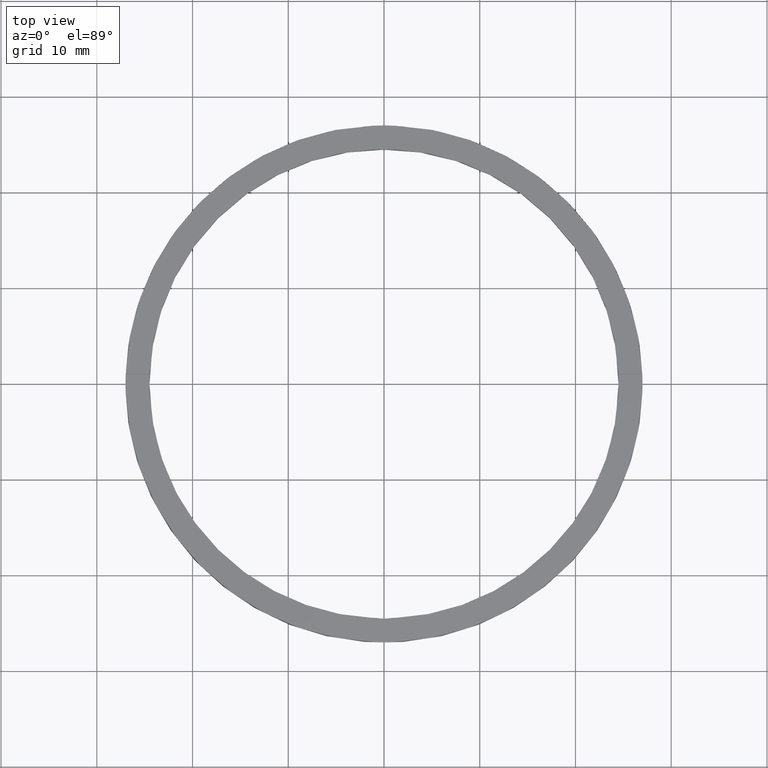
[diagram: clean part render]
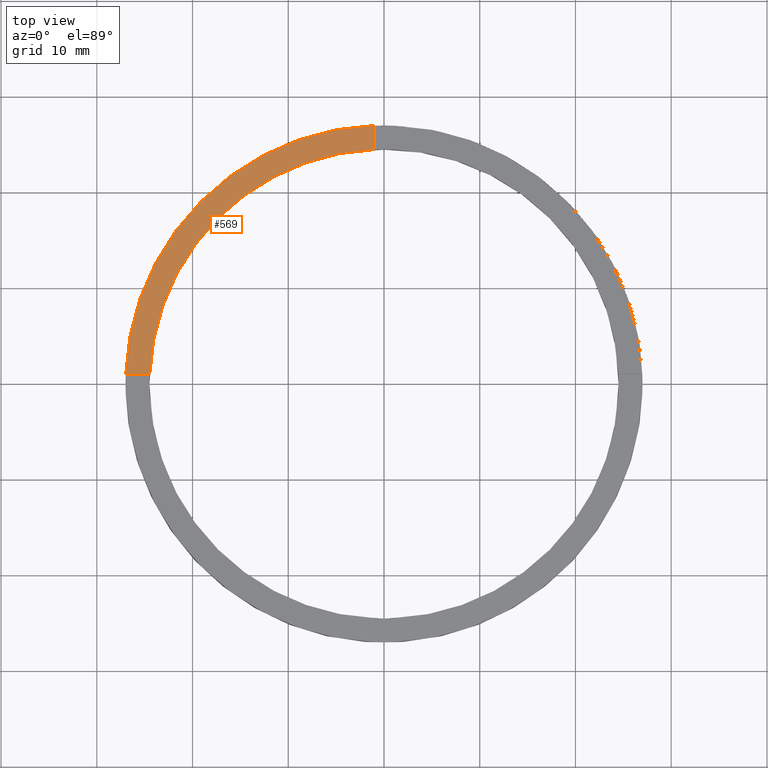
[diagram: same view with one face highlighted and labeled with its STEP entity id]
A machine part, top view. The second image highlights one B-rep face of the part: STEP entity #569.
In plain terms, the highlighted planar face has unit normal (0, 0, 1).
Its self-contained STEP definition (entity closure, byte-faithful):
#1 = CARTESIAN_POINT ( 'NONE',  ( -24.47958332978729601, 0.9999999999999737987, 2.500000000000000000 ) ) ;
#14 = CARTESIAN_POINT ( 'NONE',  ( 0.000000000000000000, 0.000000000000000000, 2.500000000000000000 ) ) ;
#106 = PLANE ( 'NONE',  #542 ) ;
#164 = EDGE_LOOP ( 'NONE', ( #472, #169, #351, #466 ) ) ;
#169 = ORIENTED_EDGE ( 'NONE', *, *, #523, .T. ) ;
#180 = LINE ( 'NONE', #631, #182 ) ;
#182 = VECTOR ( 'NONE', #404, 1000.000000000000000 ) ;
#209 = CIRCLE ( 'NONE', #695, 27.00000000000000000 ) ;
#240 = CARTESIAN_POINT ( 'NONE',  ( 0.000000000000000000, 0.000000000000000000, 2.500000000000000000 ) ) ;
#262 = CARTESIAN_POINT ( 'NONE',  ( 0.000000000000000000, 0.000000000000000000, 2.500000000000000000 ) ) ;
#281 = VERTEX_POINT ( 'NONE', #703 ) ;
#291 = VERTEX_POINT ( 'NONE', #1 ) ;
#323 = DIRECTION ( 'NONE',  ( 0.000000000000000000, 0.000000000000000000, 1.000000000000000000 ) ) ;
#340 = DIRECTION ( 'NONE',  ( -0.000000000000000000, -1.000000000000000000, -0.000000000000000000 ) ) ;
#346 = CARTESIAN_POINT ( 'NONE',  ( -26.98147512646408330, 0.9999999999999733546, 2.500000000000000000 ) ) ;
#349 = EDGE_CURVE ( 'NONE', #547, #291, #680, .T. ) ;
#351 = ORIENTED_EDGE ( 'NONE', *, *, #355, .F. ) ;
#355 = EDGE_CURVE ( 'NONE', #291, #725, #180, .T. ) ;
#364 = DIRECTION ( 'NONE',  ( 1.000000000000000000, 0.000000000000000000, -0.000000000000000000 ) ) ;
#365 = DIRECTION ( 'NONE',  ( 1.000000000000000000, 0.000000000000000000, 0.000000000000000000 ) ) ;
#403 = CARTESIAN_POINT ( 'NONE',  ( -1.000000000000026423, 17.00000000000000000, 2.500000000000000000 ) ) ;
#404 = DIRECTION ( 'NONE',  ( -1.000000000000000000, -1.734723475976807341E-16, 0.000000000000000000 ) ) ;
#445 = FACE_OUTER_BOUND ( 'NONE', #164, .T. ) ;
#448 = LINE ( 'NONE', #403, #694 ) ;
#466 = ORIENTED_EDGE ( 'NONE', *, *, #349, .F. ) ;
#472 = ORIENTED_EDGE ( 'NONE', *, *, #504, .F. ) ;
#491 = DIRECTION ( 'NONE',  ( 0.000000000000000000, 0.000000000000000000, 1.000000000000000000 ) ) ;
#492 = DIRECTION ( 'NONE',  ( 0.000000000000000000, 0.000000000000000000, 1.000000000000000000 ) ) ;
#504 = EDGE_CURVE ( 'NONE', #281, #547, #448, .T. ) ;
#523 = EDGE_CURVE ( 'NONE', #281, #725, #209, .T. ) ;
#542 = AXIS2_PLACEMENT_3D ( 'NONE', #262, #323, #364 ) ;
#547 = VERTEX_POINT ( 'NONE', #638 ) ;
#569 = ADVANCED_FACE ( 'NONE', ( #445 ), #106, .T. ) ;
#631 = CARTESIAN_POINT ( 'NONE',  ( -17.00000000000018474, 0.9999999999999751310, 2.500000000000000000 ) ) ;
#638 = CARTESIAN_POINT ( 'NONE',  ( -1.000000000000026423, 24.47958332978729601, 2.500000000000000000 ) ) ;
#647 = DIRECTION ( 'NONE',  ( 1.000000000000000000, 0.000000000000000000, 0.000000000000000000 ) ) ;
#680 = CIRCLE ( 'NONE', #779, 24.50000000000000000 ) ;
#694 = VECTOR ( 'NONE', #340, 1000.000000000000000 ) ;
#695 = AXIS2_PLACEMENT_3D ( 'NONE', #14, #491, #647 ) ;
#703 = CARTESIAN_POINT ( 'NONE',  ( -1.000000000000026423, 26.98147512646407975, 2.500000000000000000 ) ) ;
#725 = VERTEX_POINT ( 'NONE', #346 ) ;
#779 = AXIS2_PLACEMENT_3D ( 'NONE', #240, #492, #365 ) ;